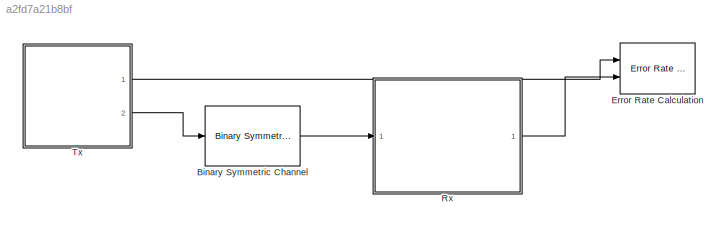
MODEL slx_a2fd7a21b8bf
KIND model
BLOCK [Reference] Binary Symmetric Channel  REF=commchan3/Binary Symmetric
Channel
  E = off
  P = BER
  Ports = [1, 1]
  SourceBlock = commchan3/Binary Symmetric\nChannel
  SourceType = Binary Symmetric Channel
  outDtype = double
  s = 71
BLOCK [Reference] Error Rate Calculation  REF=commsink2/Error Rate
Calculation
  N = 0
  PMode = Workspace
  Ports = [2]
  RsMode2 = off
  SourceBlock = commsink2/Error Rate\nCalculation
  SourceType = Error Rate Calculation
  WsName = BER1
  cp_mode = Entire frame
  maxBits = 1e6
  numErr = 100
  st_delay = 0
  stop = off
  subframe = []
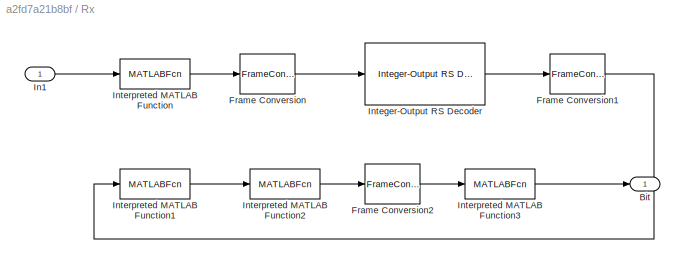
BLOCK [SubSystem] Rx
  Ports = [1, 1]
  RequestExecContextInheritance = off
BLOCK [Outport] Rx/Bit
  IconDisplay = Port number
BLOCK [FrameConversion] Rx/Frame Conversion
  Ports = [1, 1]
BLOCK [FrameConversion] Rx/Frame Conversion1
  OutFrame = Sample-based
  Ports = [1, 1]
BLOCK [FrameConversion] Rx/Frame Conversion2
  Ports = [1, 1]
BLOCK [Inport] Rx/In1
  IconDisplay = Port number
BLOCK [Reference] Rx/Integer-Output RS Decoder  REF=commblkcod2/Integer-Output
RS Decoder
  Ports = [1, 1]
  SourceBlock = commblkcod2/Integer-Output\nRS Decoder
  SourceType = Integer-Output RS Decoder
  genPoly = rsgenpoly(7,3)
  k = 11
  n = 15
  prPoly = [1 0 1 1]
  punctVec = [ones(2,1); zeros(2,1)]
  showNumErr = off
  specErasurePort = off
  specGenPoly = off
  specPrimPoly = off
  specPuncture = off
BLOCK [MATLABFcn] Rx/Interpreted MATLAB Function
  MATLABFcn = bi2de(u,'left-msb')
  Ports = [1, 1]
BLOCK [MATLABFcn] Rx/Interpreted MATLAB Function1
  MATLABFcn = de2bi(u,4,'left-msb')
  Output1D = off
  Ports = [1, 1]
BLOCK [MATLABFcn] Rx/Interpreted MATLAB Function2
  MATLABFcn = reshape(u.',44,1)
  Output1D = off
  Ports = [1, 1]
BLOCK [MATLABFcn] Rx/Interpreted MATLAB Function3
  MATLABFcn = reshape(u.',44,1)
  Output1D = off
  OutputSignalType = real
  Ports = [1, 1]
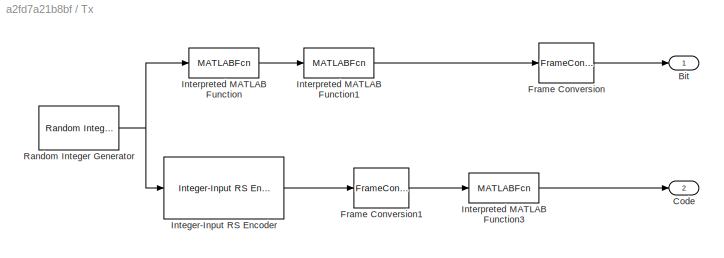
BLOCK [SubSystem] Tx
  Ports = [0, 2]
  RequestExecContextInheritance = off
BLOCK [Outport] Tx/Bit
  IconDisplay = Port number
BLOCK [Outport] Tx/Code
  IconDisplay = Port number
  Port = 2
BLOCK [FrameConversion] Tx/Frame Conversion
  Ports = [1, 1]
BLOCK [FrameConversion] Tx/Frame Conversion1
  OutFrame = Sample-based
  Ports = [1, 1]
BLOCK [Reference] Tx/Integer-Input RS Encoder  REF=commblkcod2/Integer-Input
RS Encoder
  Ports = [1, 1]
  SourceBlock = commblkcod2/Integer-Input\nRS Encoder
  SourceType = Integer-Input RS Encoder
  genPoly = rsgenpoly(7,3)
  k = 11
  n = 15
  prPoly = [1 0 1 1]
  punctVec = [ones(2,1); zeros(2,1)]
  specGenPoly = off
  specPrimPoly = off
  specPuncture = off
BLOCK [MATLABFcn] Tx/Interpreted MATLAB Function
  MATLABFcn = de2bi(u,4,'left-msb')
  Output1D = off
  Ports = [1, 1]
BLOCK [MATLABFcn] Tx/Interpreted MATLAB Function1
  MATLABFcn = reshape(u.',44,1)
  Output1D = off
  OutputSignalType = real
  Ports = [1, 1]
BLOCK [MATLABFcn] Tx/Interpreted MATLAB Function3
  MATLABFcn = de2bi(u,4,'left-msb')
  Output1D = off
  Ports = [1, 1]
BLOCK [Reference] Tx/Random Integer Generator  REF=commrandsrc2/Random Integer
Generator
  Ports = [0, 1]
  SourceBlock = commrandsrc2/Random Integer\nGenerator
  SourceType = Random Integer Generator
  Ts = 1/110000
  frameBased = on
  mul = 16
  orient = off
  outDataType = double
  sampPerFrame = 11
  seed = 37
LINE Binary Symmetric Channel:1 -> Rx:1
LINE Rx/Frame Conversion1:1 -> Rx/Interpreted MATLAB Function1:1
LINE Rx/Frame Conversion2:1 -> Rx/Interpreted MATLAB Function3:1
LINE Rx/Frame Conversion:1 -> Rx/Integer-Output RS Decoder:1
LINE Rx/In1:1 -> Rx/Interpreted MATLAB Function:1
LINE Rx/Integer-Output RS Decoder:1 -> Rx/Frame Conversion1:1
LINE Rx/Interpreted MATLAB Function1:1 -> Rx/Interpreted MATLAB Function2:1
LINE Rx/Interpreted MATLAB Function2:1 -> Rx/Frame Conversion2:1
LINE Rx/Interpreted MATLAB Function3:1 -> Rx/Bit:1
LINE Rx/Interpreted MATLAB Function:1 -> Rx/Frame Conversion:1
LINE Rx:1 -> Error Rate Calculation:2
LINE Tx/Frame Conversion1:1 -> Tx/Interpreted MATLAB Function3:1
LINE Tx/Frame Conversion:1 -> Tx/Bit:1
LINE Tx/Integer-Input RS Encoder:1 -> Tx/Frame Conversion1:1
LINE Tx/Interpreted MATLAB Function1:1 -> Tx/Frame Conversion:1
LINE Tx/Interpreted MATLAB Function3:1 -> Tx/Code:1
LINE Tx/Interpreted MATLAB Function:1 -> Tx/Interpreted MATLAB Function1:1
NET Tx/Random Integer Generator:1 -> Tx/Integer-Input RS Encoder:1, Tx/Interpreted MATLAB Function:1
LINE Tx:1 -> Error Rate Calculation:1
LINE Tx:2 -> Binary Symmetric Channel:1
note: NET lines group one-source signal fan-out (src -> all destinations, sorted); 1:1 wires keep LINE
